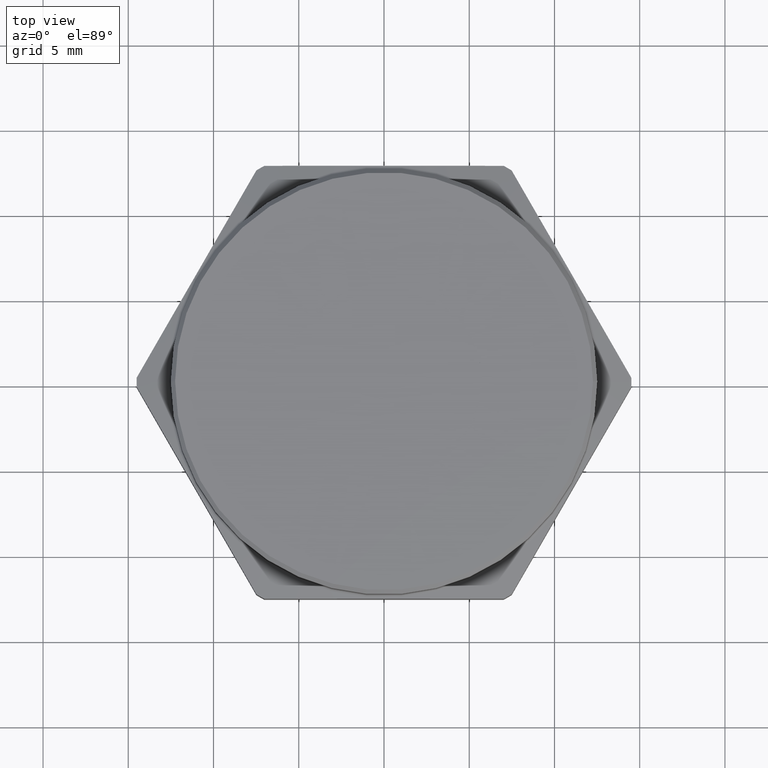
[diagram: clean part render]
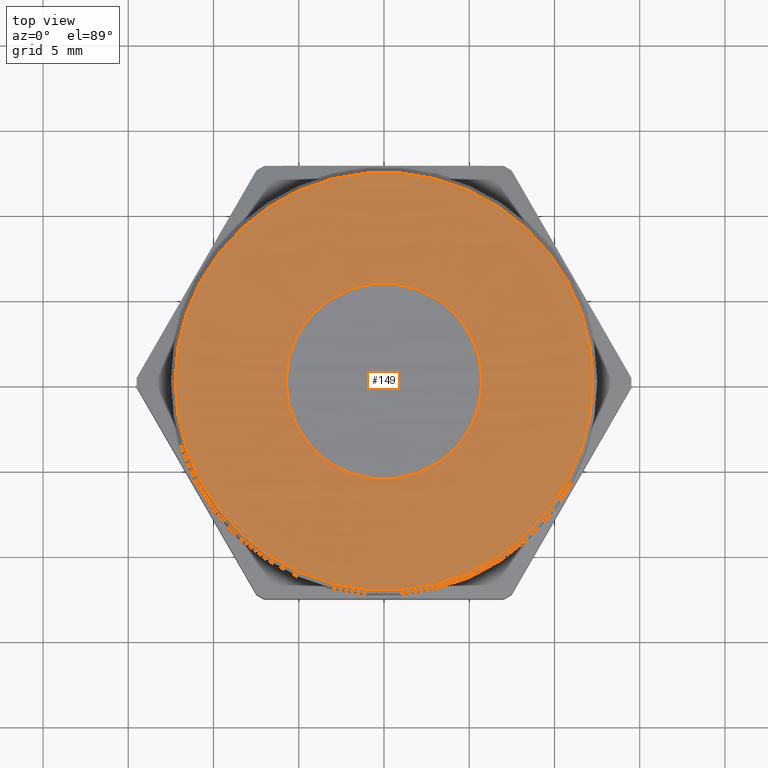
[diagram: same view with one face highlighted and labeled with its STEP entity id]
A machine part, top view. The second image highlights one B-rep face of the part: STEP entity #149.
In plain terms, the highlighted planar face has unit normal (0, 0, 1).
Its self-contained STEP definition (entity closure, byte-faithful):
#3 = EDGE_LOOP ( 'NONE', ( #2249, #2250 ) ) ;
#17 = EDGE_LOOP ( 'NONE', ( #2247, #2248 ) ) ;
#42 = VERTEX_POINT ( 'NONE', #2900 ) ;
#149 = ADVANCED_FACE ( 'NONE', ( #2590, #2607 ), #2935, .T. ) ;
#187 = AXIS2_PLACEMENT_3D ( 'NONE', #2937, #2938, #2933 ) ;
#260 = AXIS2_PLACEMENT_3D ( 'NONE', #591, #592, #593 ) ;
#284 = AXIS2_PLACEMENT_3D ( 'NONE', #816, #817, #818 ) ;
#285 = AXIS2_PLACEMENT_3D ( 'NONE', #821, #822, #823 ) ;
#292 = AXIS2_PLACEMENT_3D ( 'NONE', #1800, #1801, #1802 ) ;
#591 = CARTESIAN_POINT ( 'NONE',  ( 0.0000000000000000000, 0.0000000000000000000, 0.2999999999999999900 ) ) ;
#592 = DIRECTION ( 'NONE',  ( 0.0000000000000000000, 0.0000000000000000000, 1.000000000000000000 ) ) ;
#593 = DIRECTION ( 'NONE',  ( 1.000000000000000000, 0.0000000000000000000, 0.0000000000000000000 ) ) ;
#816 = CARTESIAN_POINT ( 'NONE',  ( 0.0000000000000000000, 0.0000000000000000000, 0.2999999999999999900 ) ) ;
#817 = DIRECTION ( 'NONE',  ( 0.0000000000000000000, 0.0000000000000000000, 1.000000000000000000 ) ) ;
#818 = DIRECTION ( 'NONE',  ( 1.000000000000000000, 0.0000000000000000000, 0.0000000000000000000 ) ) ;
#821 = CARTESIAN_POINT ( 'NONE',  ( 0.0000000000000000000, 0.0000000000000000000, 0.2999999999999999900 ) ) ;
#822 = DIRECTION ( 'NONE',  ( 0.0000000000000000000, 0.0000000000000000000, 1.000000000000000000 ) ) ;
#823 = DIRECTION ( 'NONE',  ( 1.000000000000000000, 0.0000000000000000000, 0.0000000000000000000 ) ) ;
#886 = CIRCLE ( 'NONE', #284, 0.4825000000000012600 ) ;
#887 = CIRCLE ( 'NONE', #285, 0.2265000000000000100 ) ;
#901 = CIRCLE ( 'NONE', #292, 0.2265000000000000100 ) ;
#1545 = CIRCLE ( 'NONE', #260, 0.4825000000000012600 ) ;
#1789 = CARTESIAN_POINT ( 'NONE',  ( 0.2265000000000000100, 0.0000000000000000000, 0.2999999999999999900 ) ) ;
#1800 = CARTESIAN_POINT ( 'NONE',  ( 0.0000000000000000000, 0.0000000000000000000, 0.2999999999999999900 ) ) ;
#1801 = DIRECTION ( 'NONE',  ( 0.0000000000000000000, 0.0000000000000000000, 1.000000000000000000 ) ) ;
#1802 = DIRECTION ( 'NONE',  ( 1.000000000000000000, 0.0000000000000000000, 0.0000000000000000000 ) ) ;
#1875 = CARTESIAN_POINT ( 'NONE',  ( 0.4825000000000012600, 5.970153145843355200E-017, 0.2999999999999999900 ) ) ;
#1878 = CARTESIAN_POINT ( 'NONE',  ( -0.2265000000000000100, 2.773825000068754100E-017, 0.2999999999999999900 ) ) ;
#2247 = ORIENTED_EDGE ( 'NONE', *, *, #2435, .T. ) ;
#2248 = ORIENTED_EDGE ( 'NONE', *, *, #2378, .T. ) ;
#2249 = ORIENTED_EDGE ( 'NONE', *, *, #2436, .F. ) ;
#2250 = ORIENTED_EDGE ( 'NONE', *, *, #2452, .F. ) ;
#2378 = EDGE_CURVE ( 'NONE', #2984, #42, #1545, .T. ) ;
#2435 = EDGE_CURVE ( 'NONE', #42, #2984, #886, .T. ) ;
#2436 = EDGE_CURVE ( 'NONE', #2457, #2987, #887, .T. ) ;
#2452 = EDGE_CURVE ( 'NONE', #2987, #2457, #901, .T. ) ;
#2457 = VERTEX_POINT ( 'NONE', #1789 ) ;
#2590 = FACE_OUTER_BOUND ( 'NONE', #17, .T. ) ;
#2607 = FACE_BOUND ( 'NONE', #3, .T. ) ;
#2900 = CARTESIAN_POINT ( 'NONE',  ( -0.4825000000000012600, 0.0000000000000000000, 0.2999999999999999900 ) ) ;
#2933 = DIRECTION ( 'NONE',  ( 1.000000000000000000, 0.0000000000000000000, -0.0000000000000000000 ) ) ;
#2935 = PLANE ( 'NONE',  #187 ) ;
#2937 = CARTESIAN_POINT ( 'NONE',  ( 0.0000000000000000000, 0.0000000000000000000, 0.2999999999999999900 ) ) ;
#2938 = DIRECTION ( 'NONE',  ( 0.0000000000000000000, 0.0000000000000000000, 1.000000000000000000 ) ) ;
#2984 = VERTEX_POINT ( 'NONE', #1875 ) ;
#2987 = VERTEX_POINT ( 'NONE', #1878 ) ;